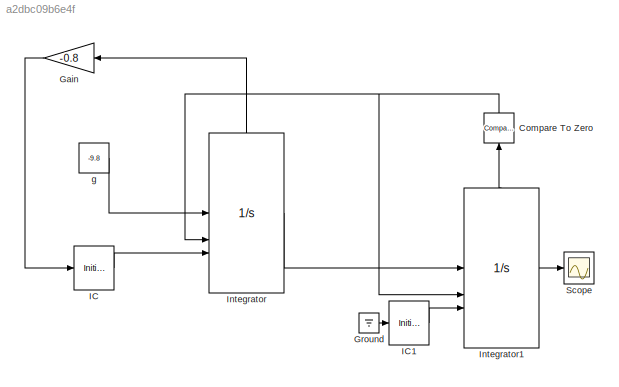
MODEL slx_a2dbc09b6e4f
KIND model
CONFIG AbsTol = auto
CONFIG EnableMultiTasking = off
CONFIG FixedStep = auto
CONFIG MaxStep = auto
CONFIG MinStep = auto
CONFIG RelTol = 1e-3
CONFIG SampleTimeConstraint = Unconstrained
CONFIG SolverName = VariableStepAuto
CONFIG StartTime = 0.0
CONFIG StopTime = 10
BLOCK [Reference] Compare To Zero  REF=simulink/Logic and Bit
Operations/Compare
To Zero
  NameLocation = right
  SourceBlock = simulink/Logic and Bit\nOperations/Compare\nTo Zero
  SourceType = Compare To Zero
BLOCK [Gain] Gain
  Gain = -0.8
BLOCK [Ground] Ground
BLOCK [InitialCondition] IC
  Value = 15
BLOCK [InitialCondition] IC1
  Value = 10
BLOCK [Integrator] Integrator
  ExternalReset = rising
  InitialConditionSource = external
  ShowStatePort = on
BLOCK [Integrator] Integrator1
  ExternalReset = rising
  InitialConditionSource = external
  ShowStatePort = on
BLOCK [Scope] Scope
  Floating = off
  NumInputPorts = 1
  ScopeSpecificationString = Simulink.scopes.TimeScopeBlockCfg('CurrentConfiguration', extmgr.ConfigurationSet(extmgr.Configuration('Core','General UI',true),extmgr.Configuration('Core','Source UI',true),extmgr.Configuration('Sources','WiredSimulink',true),extmgr.Configuration('Visuals','Time Domain',true,'SerializedDisplays',{struct('MinYLimReal','-2.68494','MaxYLimReal','24.16448','YLabelReal','','MinYLimMag','0.00000','Max...<+1422ch>
BLOCK [Constant] g
  Value = -9.8
NET Compare To Zero:1 -> Integrator1:2, Integrator:2
LINE Gain:1 -> IC:1
LINE Ground:1 -> IC1:1
LINE IC1:1 -> Integrator1:3
LINE IC:1 -> Integrator:3
LINE Integrator1:1 -> Scope:1
LINE Integrator1:state -> Compare To Zero:1
LINE Integrator:1 -> Integrator1:1
LINE Integrator:state -> Gain:1
LINE g:1 -> Integrator:1
note: NET lines group one-source signal fan-out (src -> all destinations, sorted); 1:1 wires keep LINE
